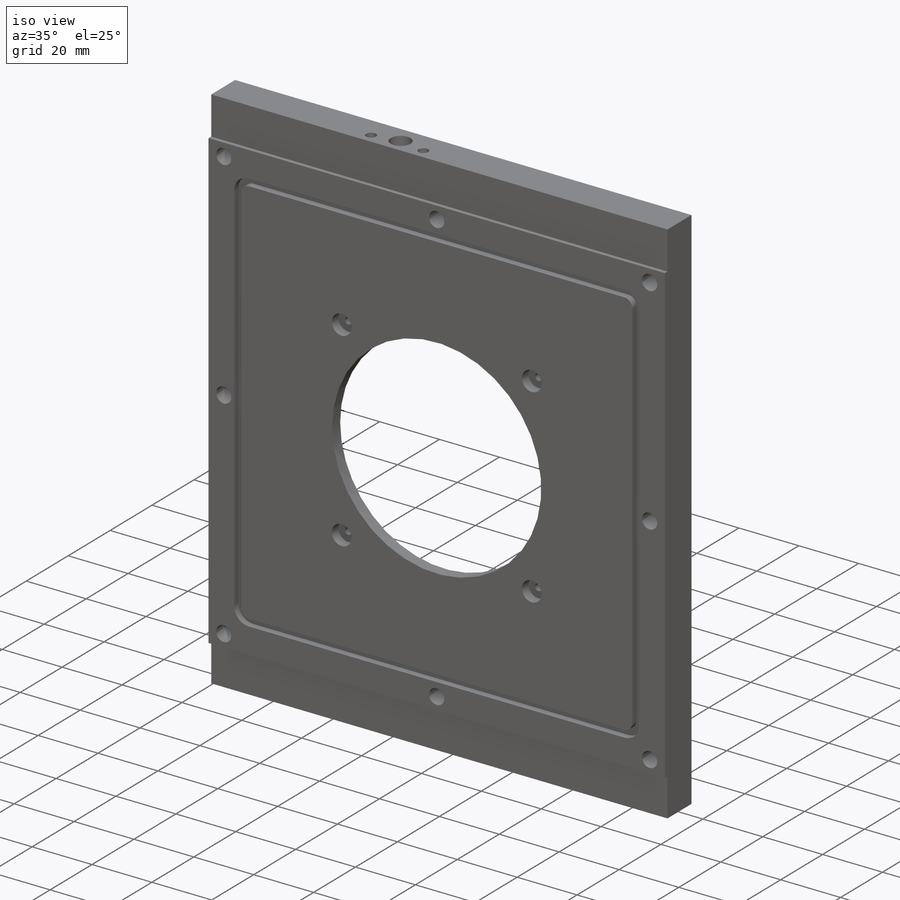
[diagram: iso view]
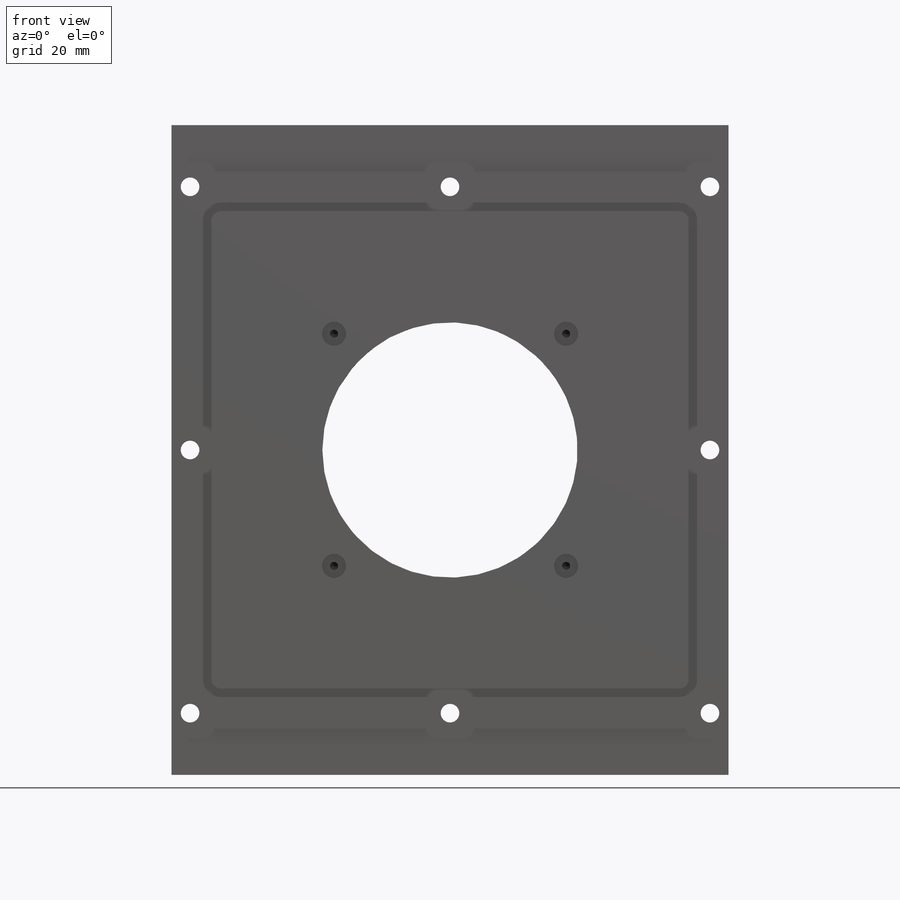
[diagram: front view]
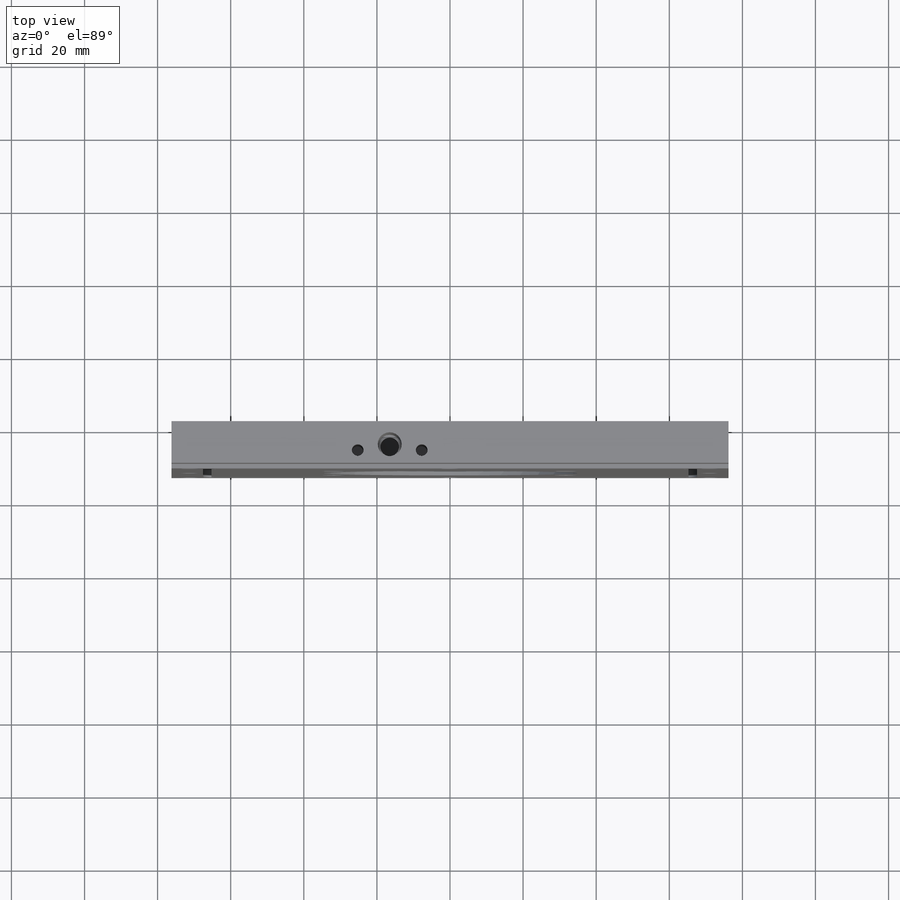
[diagram: top view]
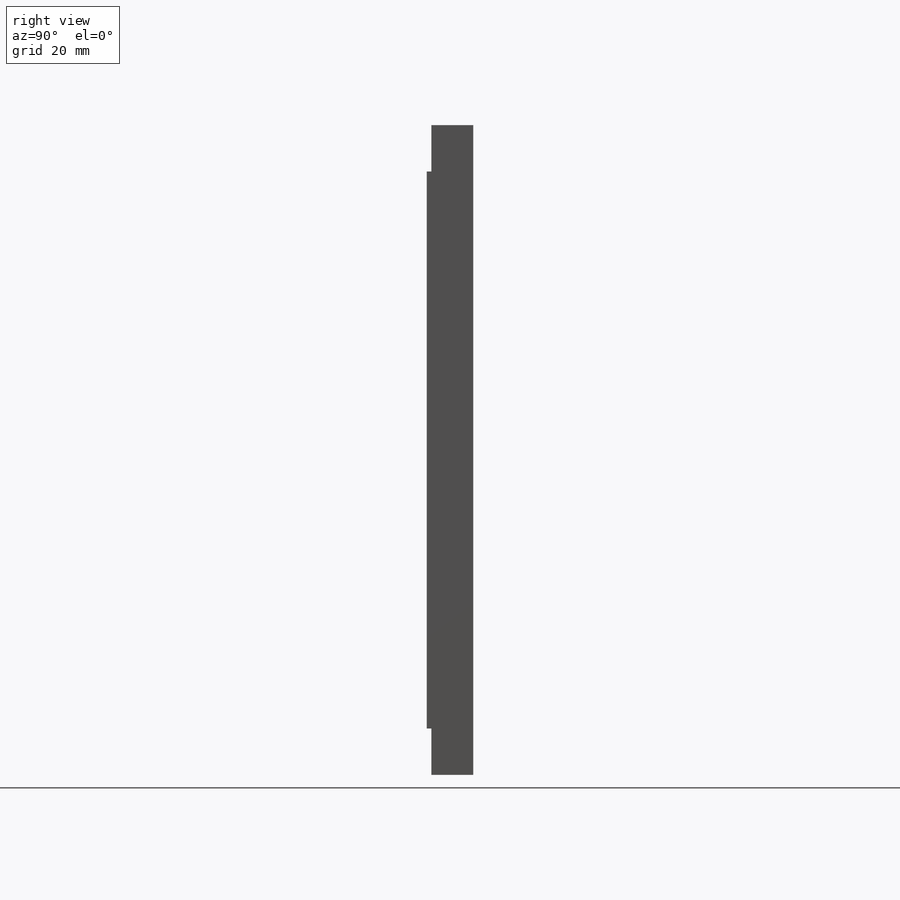
[diagram: right view]
SOLIDWORKS PART (.sldprt)
format: sldprt  version: not decoded by parser v0  size: 816,640 bytes
history: native  units: mm
features: sketch x32, cut_extrude x17, mirror x7, hole x5, fillet x4, plane x3, extrude x3, cut_revolve x2, material x1, chamfer x1 (+14 scaffold rows collapsed)
feature tree (89):
  scaffold x14  (default folders/planes/origin — collapsed)
  material  "Material <not specified>"
  plane  "Plane1"  Offset=12.7mm
  sketch  "Sketch1"  dims[D1=177.8mm D2=152.4mm D3=88.9mm]
  extrude  "Boss-Extrude1"  Depth=12.7mm
  sketch  "Sketch2"
  cut_extrude  "Cut-Extrude1"  Depth=152.4mm
  sketch  "Sketch3"  dims[D1=1.27mm D2=0.0mm]
  cut_extrude  "Cut-Extrude2"  [1 undecoded]
  sketch  "Sketch4"  dims[c1.D1=2.54mm c1.D2=2.54mm c2.D1=1.27mm c2.D2=1.27mm]
  cut_extrude  "Cut-Extrude3"  Depth=127mm
  sketch  "Sketch5"  dims[D1=1.27mm D2=1.27mm]
  cut_extrude  "Cut-Extrude4"  [1 undecoded]
  sketch  "Sketch6"  dims[D1=109.982mm D2=54.991mm D3=33.909mm D4=33.909mm D5=109.982mm]
  cut_extrude  "Cut-Extrude5"  Depth=1.9304mm
  sketch  "Sketch7"
  extrude  "Boss-Extrude2"  Depth=1.9304mm
  sketch  "Sketch8"  dims[D1=45.72mm D2=~6.737415mm D3=~6.737415mm D4=~6.737415mm D5=~6.737415mm D6=~6.737415mm D7=~6.737415mm]
  cut_extrude  "Cut-Extrude6"  Depth=2.794mm
  plane  "Plane2"
  sketch  "Sketch9"  dims[D1=19.05mm]
  cut_revolve  "Cut-Revolve1"  Angle=360deg
  plane  "Plane3"  Offset=16.51mm
  sketch  "Sketch10"  dims[D1=6.35mm D2=~5.141519mm D3=2.54mm D4=2.54mm]
  cut_revolve  "Cut-Revolve2"  Angle=360deg
  hole  "1/4 (0.25) Diameter Hole2"  Diameter=6.35mm Depth=12.7mm
  sketch  "Sketch14"  dims[D1=38.1mm D2=38.1mm]
  sketch  "Sketch13"  dims[hole-wizard template sketch: 61 standard entries collapsed; hole parameters above]
  hole  "CBORE for #10 Socket Head Cap Screw1"  Diameter=5.1054mm Depth=12.7mm
  sketch  "Sketch18"  dims[D1=16.891mm D2=16.891mm]
  sketch  "Sketch17"  dims[hole-wizard template sketch: 43 standard entries collapsed; hole parameters kept: c12.C'Bore Dia.=9.525mm c12.C'Bore Depth=4.826mm]
  hole  "CBORE for #10 Socket Head Cap Screw2"  Diameter=5.1054mm Depth=12.7mm
  sketch  "Sketch20"  dims[c1.D1=59.309mm c1.D2=59.309mm c1.D3=58.7375mm c1.D4=58.7375mm c1.D5=~83.472459mm c2.D4=117.475mm c2.D3=59.309mm c3.D4=59.309mm c3.D5=59.309mm c3.D6=59.309mm c3.D7=16.891mm c3.D8=59.309mm c3.D1=5.08mm c3.D2=5.08mm c3.D3=5.08mm c4.D4=16.891mm c4.D5=16.891mm]
  sketch  "Sketch19"  dims[hole-wizard template sketch: 43 standard entries collapsed; hole parameters kept: c12.C'Bore Dia.=9.525mm c12.C'Bore Depth=4.826mm]
  hole  "#2-56 Tapped Hole1"  Diameter=1.778mm Depth=3.19278mm
  sketch  "Sketch22"  dims[D1=45.72mm D2=45.72mm D3=45.72mm]
  sketch  "Sketch21"  dims[hole-wizard template sketch: 47 standard entries collapsed; hole parameters kept: c15.Tap Drill Depth=~3.19278mm c15.D3=~14.816244mm c15.Drill Angle=118.0deg]
  hole  "#4-40 Tapped Hole1"  Diameter=2.2606mm Depth=7.5946mm
  sketch  "Sketch24"
  sketch  "Sketch23"  dims[hole-wizard template sketch: 50 standard entries collapsed; hole parameters above]
  fillet  "Fillet1"  Radius=2.54mm
  fillet  "Fillet2"  Radius=3.175mm
  fillet  "Fillet3"  Radius=6.0706mm
  sketch  "Sketch25"  dims[D1=6.604mm]
  cut_extrude  "Cut-Extrude7"  Depth=3.175mm
  mirror  "Mirror1"
  mirror  "Mirror2"
  mirror  "Mirror3"
  sketch  "Sketch26"  dims[D1=12.7mm]
  cut_extrude  "Cut-Extrude8"  Depth=1.27mm
  mirror  "Mirror4"
  sketch  "Sketch27"  dims[D2=69.469mm D1=2.2352mm]
  cut_extrude  "Cut-Extrude9"  Depth=0.635mm
  sketch  "Sketch28"  dims[D1=25.4mm D2=12.7mm D3=25.4mm]
  cut_extrude  "Cut-Extrude10"  Depth=3.175mm
  mirror  "Mirror5"
  fillet  "Fillet4"  Radius=2.54mm
  sketch  "Sketch29"  dims[D1=12.065mm]
  cut_extrude  "Cut-Extrude11"  [1 undecoded]
  mirror  "Mirror6"
  sketch  "Sketch30"  dims[D1=3.2258mm D3=3.2258mm D2=7.9375mm D4=8.89mm D5=8.89mm D6=7.9375mm]
  cut_extrude  "Cut-Extrude12"  Depth=33.02mm
  sketch  "Sketch31"  dims[D1=6.604mm]
  cut_extrude  "Cut-Extrude13"  Depth=40.64mm
  mirror  "Mirror7"
  sketch  "Sketch33"  dims[c1.D6=2.54mm c1.D1=2.032mm c1.D2=2.032mm c1.D3=2.032mm c1.D4=2.032mm c2.D1=135.255mm c2.D2=135.255mm c2.D3=67.6275mm c2.D4=67.6275mm c3.D3=67.6275mm c3.D4=67.6275mm c3.D5=2.3368mm]
  cut_extrude  "Cut-Extrude15"  Depth=2.032mm
  sketch  "Sketch35"  dims[D1=76.2mm]
  cut_extrude  "Cut-Extrude16"  [1 undecoded]
  sketch  "Sketch36"  dims[D1=114.3mm]
  cut_extrude  "Cut-Extrude17"  [1 undecoded]
  sketch  "Sketch37"
  cut_extrude  "Cut-Extrude18"  [1 undecoded]
  chamfer  "Chamfer2"  Distance=8.8646mm Angle=45deg
  sketch  "Sketch38"
  extrude  "Boss-Extrude3"  Depth=1.9304mm
decode coverage: 53 of 71 modeling features carry decoded parameters
note: ~ marks probable driven/reference dimensions
note: 6 parameter values undecoded
summary: no parameter record found for 6 features; Diameter pulled from absorbed wizard sketch
note: suppression state not decoded; provenance and decode notes live in map.json
